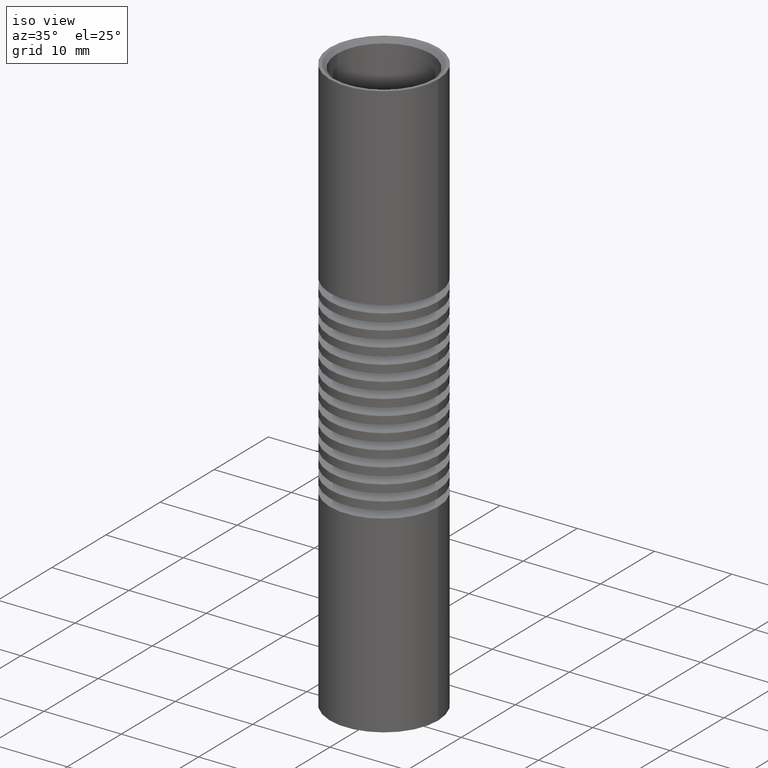
[diagram: clean part render]
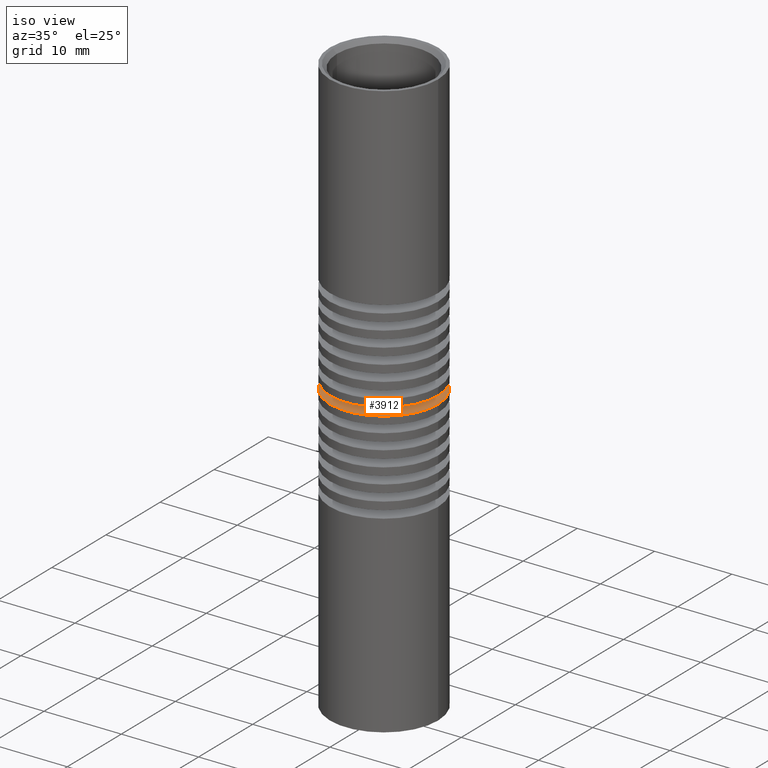
[diagram: same view with one face highlighted and labeled with its STEP entity id]
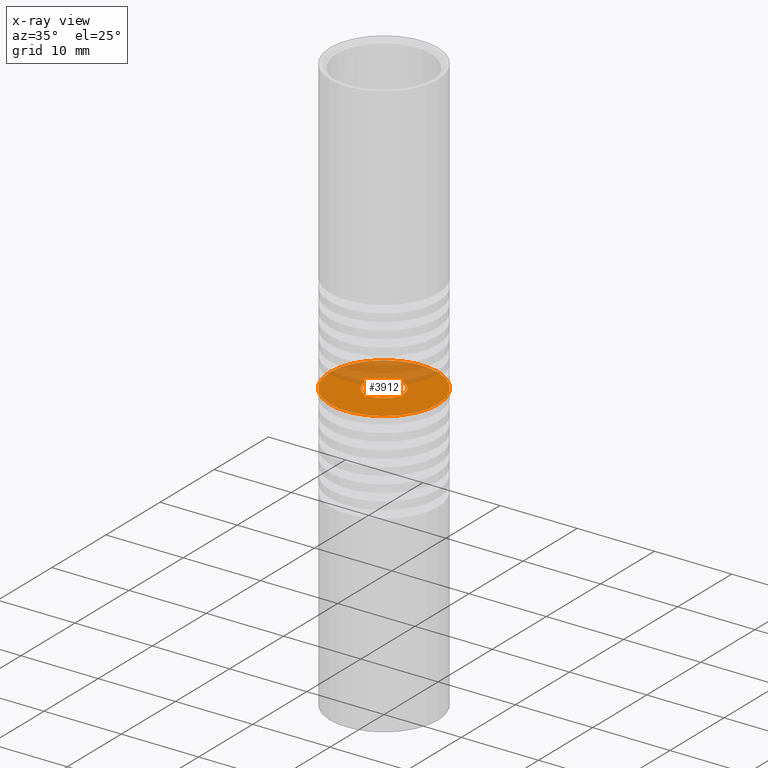
[diagram: x-ray of the same camera — body ghosted, the highlighted face saturated]
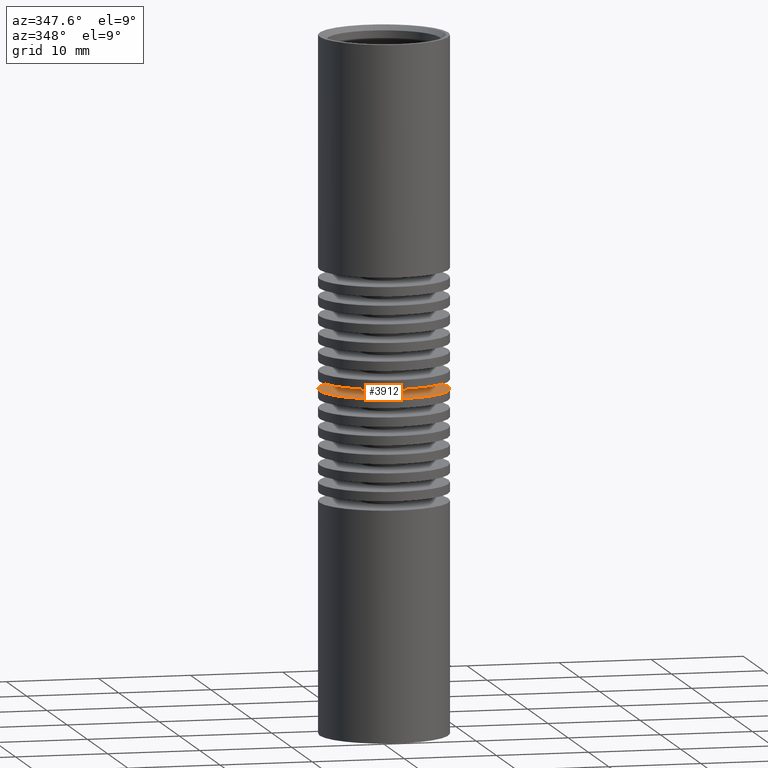
[diagram: same view with one face highlighted and labeled with its STEP entity id]
A machine part, iso view. The second image highlights one B-rep face of the part: STEP entity #3912.
The next image is the same camera in x-ray: the body ghosted, the highlighted face saturated — about 35% of this face is hidden behind the body in this view.
A second angle (auxiliary view) of the same face is appended — the face is thin or edge-on in the first view.
In plain terms, the highlighted planar face has unit normal (-0, 0, -1).
Its self-contained STEP definition (entity closure, byte-faithful):
#488 = AXIS2_PLACEMENT_3D ( 'NONE', #5109, #4132, #3932 ) ;
#548 = EDGE_LOOP ( 'NONE', ( #4092, #13205 ) ) ;
#809 = AXIS2_PLACEMENT_3D ( 'NONE', #14335, #1031, #840 ) ;
#840 = DIRECTION ( 'NONE',  ( -1.000000000000000000, 0.000000000000000000, 2.478176394252581141E-16 ) ) ;
#933 = DIRECTION ( 'NONE',  ( -2.478176394252581141E-16, 0.000000000000000000, -1.000000000000000000 ) ) ;
#1031 = DIRECTION ( 'NONE',  ( -2.478176394252581141E-16, 0.000000000000000000, -1.000000000000000000 ) ) ;
#1496 = CARTESIAN_POINT ( 'NONE',  ( 2.500000000000000444, 3.061616997868383634E-16, -0.5000000000000045519 ) ) ;
#3760 = CIRCLE ( 'NONE', #488, 2.500000000000000444 ) ;
#3912 = ADVANCED_FACE ( 'NONE', ( #6007, #8305 ), #14484, .F. ) ;
#3932 = DIRECTION ( 'NONE',  ( -1.000000000000000000, 0.000000000000000000, 2.602085213965210149E-16 ) ) ;
#4092 = ORIENTED_EDGE ( 'NONE', *, *, #11139, .T. ) ;
#4132 = DIRECTION ( 'NONE',  ( -2.478176394252581141E-16, 0.000000000000000000, -1.000000000000000000 ) ) ;
#4426 = CARTESIAN_POINT ( 'NONE',  ( -2.500000000000000444, 0.000000000000000000, -0.5000000000000032196 ) ) ;
#5109 = CARTESIAN_POINT ( 'NONE',  ( 0.000000000000000000, 0.000000000000000000, -0.5000000000000038858 ) ) ;
#5257 = ORIENTED_EDGE ( 'NONE', *, *, #13532, .F. ) ;
#5325 = VERTEX_POINT ( 'NONE', #4426 ) ;
#5917 = CIRCLE ( 'NONE', #12210, 7.000000000000002665 ) ;
#6007 = FACE_BOUND ( 'NONE', #548, .T. ) ;
#6620 = CIRCLE ( 'NONE', #11152, 2.500000000000000444 ) ;
#6896 = VERTEX_POINT ( 'NONE', #1496 ) ;
#7184 = DIRECTION ( 'NONE',  ( -1.000000000000000000, 0.000000000000000000, 2.478176394252580648E-16 ) ) ;
#7917 = DIRECTION ( 'NONE',  ( -2.478176394252581141E-16, 0.000000000000000000, -1.000000000000000000 ) ) ;
#8305 = FACE_OUTER_BOUND ( 'NONE', #11003, .T. ) ;
#8888 = CIRCLE ( 'NONE', #9094, 7.000000000000002665 ) ;
#9094 = AXIS2_PLACEMENT_3D ( 'NONE', #9351, #7917, #7184 ) ;
#9351 = CARTESIAN_POINT ( 'NONE',  ( 0.000000000000000000, 0.000000000000000000, -0.5000000000000038858 ) ) ;
#9532 = CARTESIAN_POINT ( 'NONE',  ( 0.000000000000000000, 0.000000000000000000, -0.5000000000000038858 ) ) ;
#9941 = DIRECTION ( 'NONE',  ( -1.000000000000000000, 0.000000000000000000, 2.602085213965210149E-16 ) ) ;
#10468 = DIRECTION ( 'NONE',  ( -2.478176394252581141E-16, 0.000000000000000000, -1.000000000000000000 ) ) ;
#10839 = CARTESIAN_POINT ( 'NONE',  ( 7.000000000000002665, 0.000000000000000000, -0.5000000000000056621 ) ) ;
#11003 = EDGE_LOOP ( 'NONE', ( #5257, #13559 ) ) ;
#11139 = EDGE_CURVE ( 'NONE', #5325, #6896, #6620, .T. ) ;
#11152 = AXIS2_PLACEMENT_3D ( 'NONE', #11257, #933, #9941 ) ;
#11223 = EDGE_CURVE ( 'NONE', #11791, #11861, #8888, .T. ) ;
#11257 = CARTESIAN_POINT ( 'NONE',  ( 0.000000000000000000, 0.000000000000000000, -0.5000000000000038858 ) ) ;
#11791 = VERTEX_POINT ( 'NONE', #13993 ) ;
#11861 = VERTEX_POINT ( 'NONE', #10839 ) ;
#12132 = EDGE_CURVE ( 'NONE', #6896, #5325, #3760, .T. ) ;
#12210 = AXIS2_PLACEMENT_3D ( 'NONE', #9532, #10468, #13958 ) ;
#13205 = ORIENTED_EDGE ( 'NONE', *, *, #12132, .T. ) ;
#13532 = EDGE_CURVE ( 'NONE', #11861, #11791, #5917, .T. ) ;
#13559 = ORIENTED_EDGE ( 'NONE', *, *, #11223, .F. ) ;
#13958 = DIRECTION ( 'NONE',  ( -1.000000000000000000, 0.000000000000000000, 2.478176394252580648E-16 ) ) ;
#13993 = CARTESIAN_POINT ( 'NONE',  ( -7.000000000000002665, 8.572527594031475162E-16, -0.5000000000000022204 ) ) ;
#14335 = CARTESIAN_POINT ( 'NONE',  ( 0.000000000000000000, 0.000000000000000000, -0.5000000000000038858 ) ) ;
#14484 = PLANE ( 'NONE',  #809 ) ;